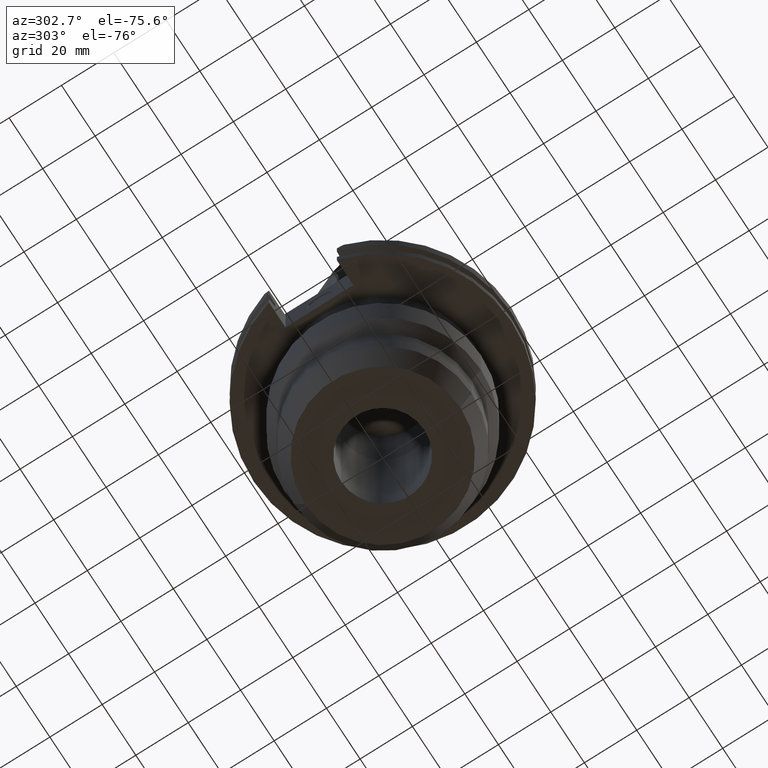
[diagram: clean part render]
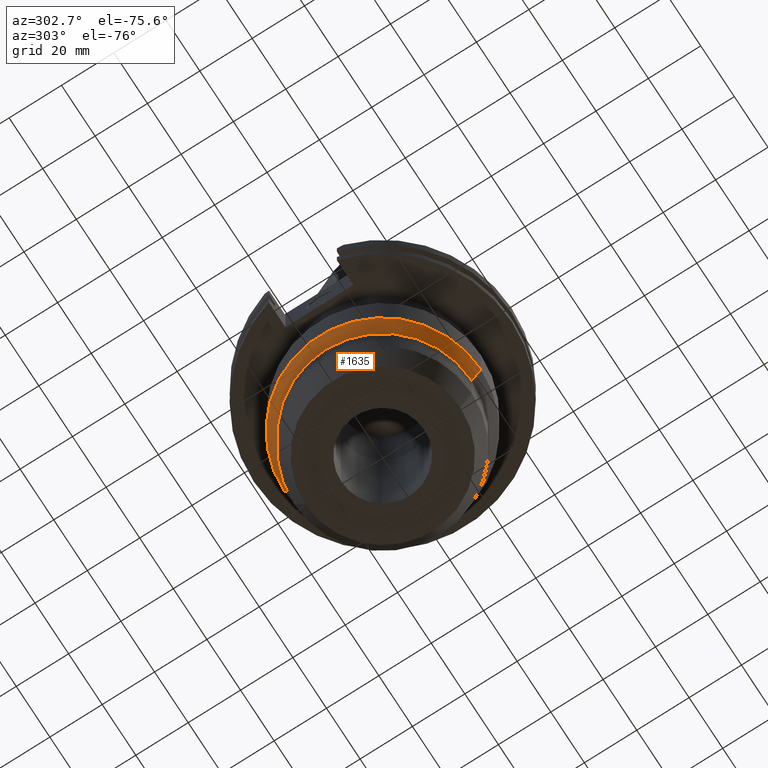
[diagram: same view with one face highlighted and labeled with its STEP entity id]
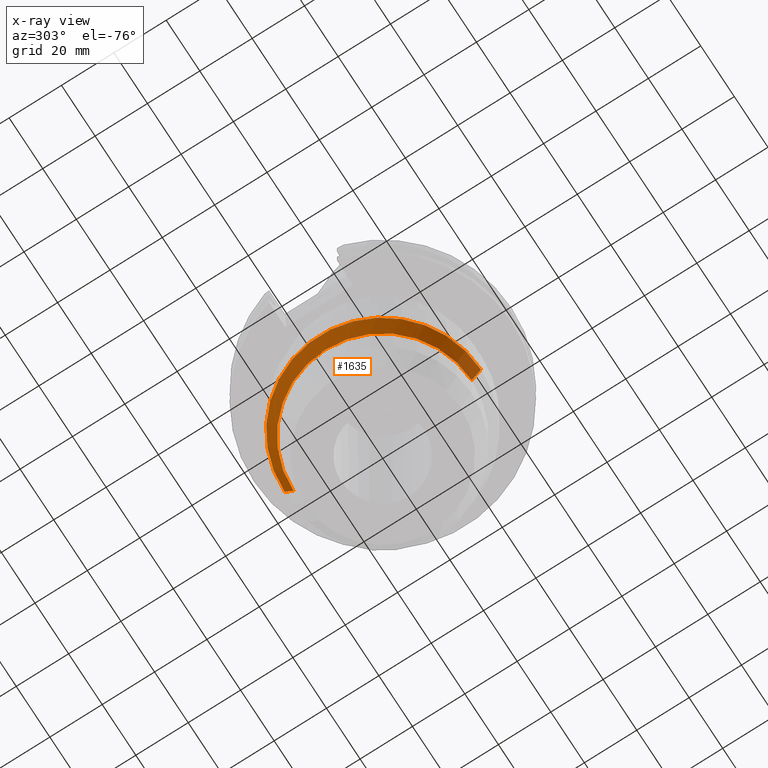
[diagram: x-ray of the same camera — body ghosted, the highlighted face saturated]
A machine part, auxiliary view. The second image highlights one B-rep face of the part: STEP entity #1635.
The next image is the same camera in x-ray: the body ghosted, the highlighted face saturated — about 0% of this face is hidden behind the body in this view.
In plain terms, the highlighted conical surface has half-angle 27.944 deg.
Its self-contained STEP definition (entity closure, byte-faithful):
#618=DIRECTION('',(0.E0,-4.686083594983E-1,-8.834060252275E-1));
#619=VECTOR('',#618,7.468923524425E0);
#620=CARTESIAN_POINT('',(0.E0,3.75E1,-5.6455E1));
#621=LINE('',#620,#619);
#641=CARTESIAN_POINT('',(0.E0,0.E0,-5.6455E1));
#642=DIRECTION('',(0.E0,0.E0,1.E0));
#643=DIRECTION('',(0.E0,1.E0,0.E0));
#644=AXIS2_PLACEMENT_3D('',#641,#642,#643);
#649=DIRECTION('',(0.E0,4.686083594983E-1,-8.834060252275E-1));
#650=VECTOR('',#649,7.468923524425E0);
#651=CARTESIAN_POINT('',(0.E0,-3.75E1,-5.6455E1));
#652=LINE('',#651,#650);
#656=CARTESIAN_POINT('',(0.E0,0.E0,-6.305309204344E1));
#657=DIRECTION('',(0.E0,0.E0,-1.E0));
#658=DIRECTION('',(0.E0,-1.E0,0.E0));
#659=AXIS2_PLACEMENT_3D('',#656,#657,#658);
#1058=CARTESIAN_POINT('',(0.E0,3.75E1,-5.6455E1));
#1059=VERTEX_POINT('',#1058);
#1060=CARTESIAN_POINT('',(0.E0,-3.75E1,-5.6455E1));
#1061=VERTEX_POINT('',#1060);
#1062=CARTESIAN_POINT('',(0.E0,3.4E1,-6.305309204344E1));
#1063=VERTEX_POINT('',#1062);
#1064=CARTESIAN_POINT('',(0.E0,-3.4E1,-6.305309204344E1));
#1065=VERTEX_POINT('',#1064);
#1623=CARTESIAN_POINT('',(0.E0,0.E0,-5.975404602172E1));
#1624=DIRECTION('',(0.E0,0.E0,1.E0));
#1625=DIRECTION('',(0.E0,1.E0,0.E0));
#1626=AXIS2_PLACEMENT_3D('',#1623,#1624,#1625);
#1627=CONICAL_SURFACE('',#1626,3.575E1,2.7944E1);
#1628=ORIENTED_EDGE('',*,*,#1613,.F.);
#1629=ORIENTED_EDGE('',*,*,#1590,.T.);
#1630=ORIENTED_EDGE('',*,*,#1617,.T.);
#1632=ORIENTED_EDGE('',*,*,#1631,.T.);
#1633=EDGE_LOOP('',(#1628,#1629,#1630,#1632));
#1634=FACE_OUTER_BOUND('',#1633,.F.);
#645=CIRCLE('',#644,3.75E1);
#660=CIRCLE('',#659,3.4E1);
#1590=EDGE_CURVE('',#1059,#1061,#645,.T.);
#1613=EDGE_CURVE('',#1059,#1063,#621,.T.);
#1617=EDGE_CURVE('',#1061,#1065,#652,.T.);
#1631=EDGE_CURVE('',#1065,#1063,#660,.T.);
#1635=ADVANCED_FACE('',(#1634),#1627,.T.);